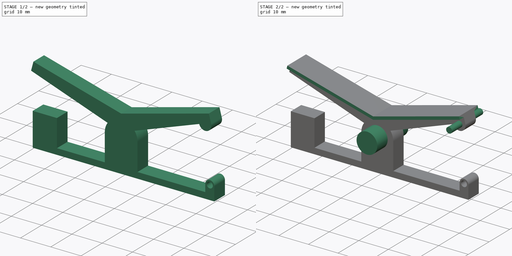
[diagram: build sequence overview — one tinted view per stage of 2, left to right]
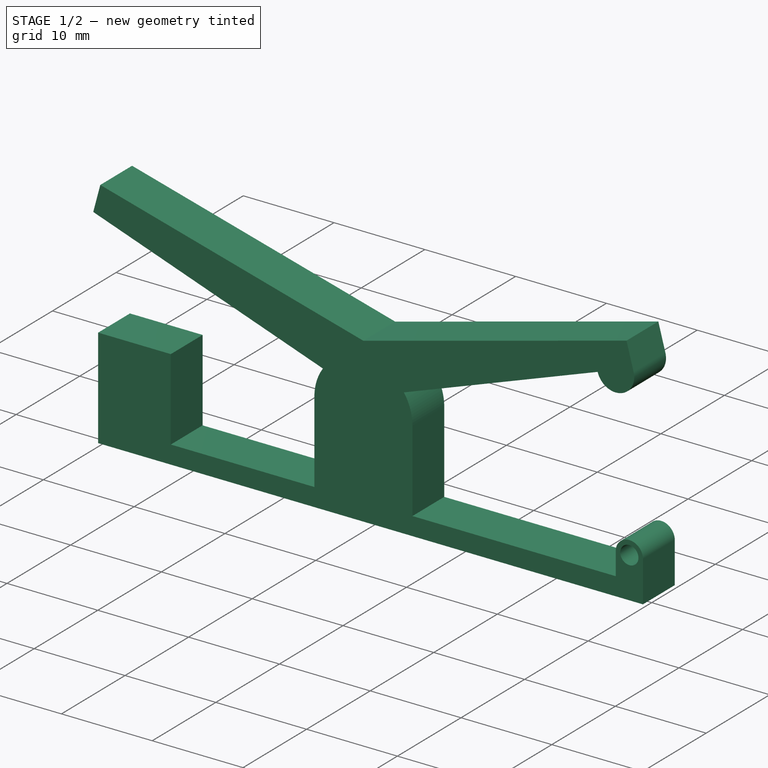
[diagram: stage 1 of 2 — iso view after this stage's code; geometry added in this stage tinted green]
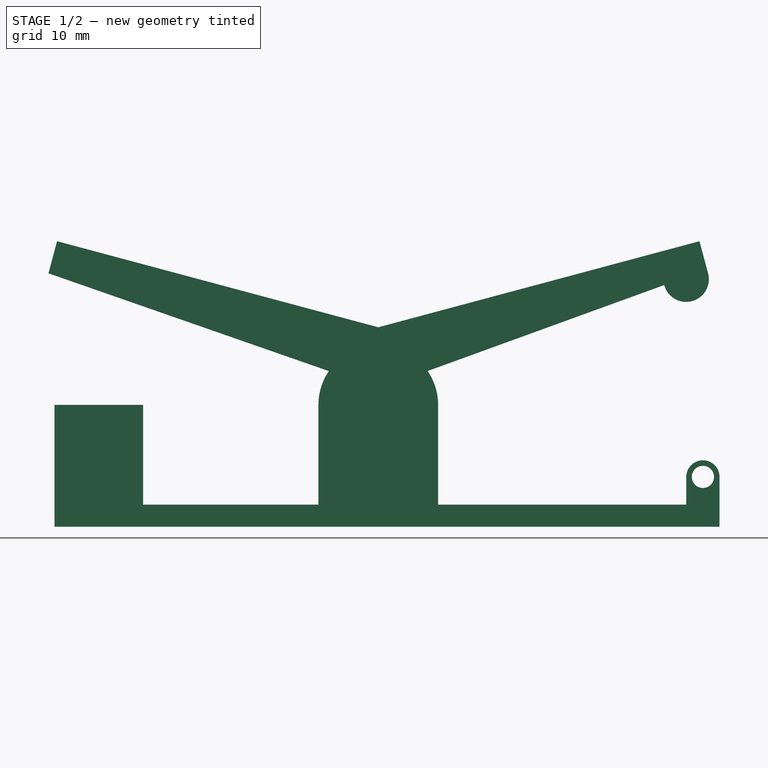
[diagram: stage 1 of 2 — front view after this stage's code; geometry added in this stage tinted green]
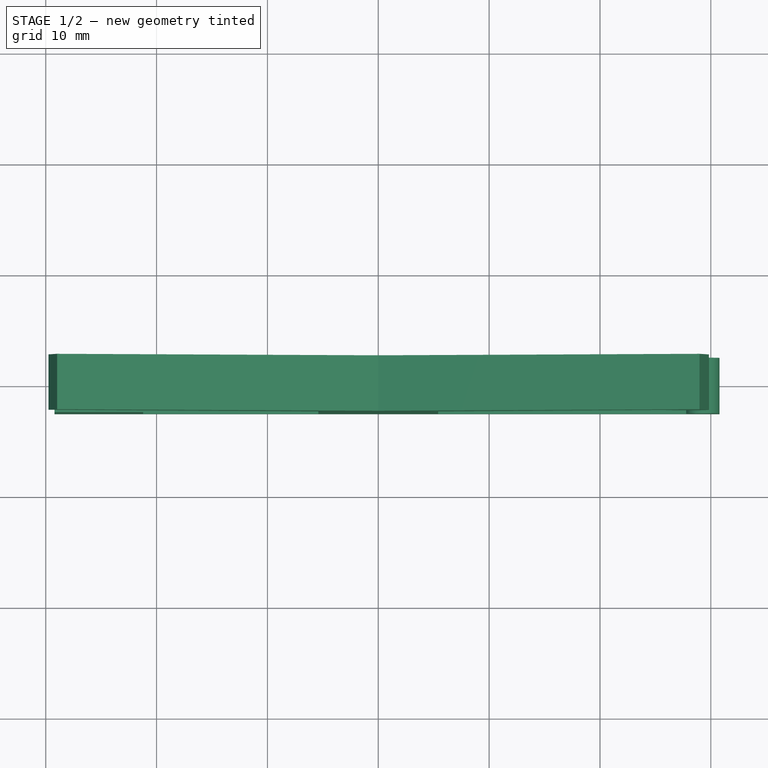
[diagram: stage 1 of 2 — top view after this stage's code; geometry added in this stage tinted green]
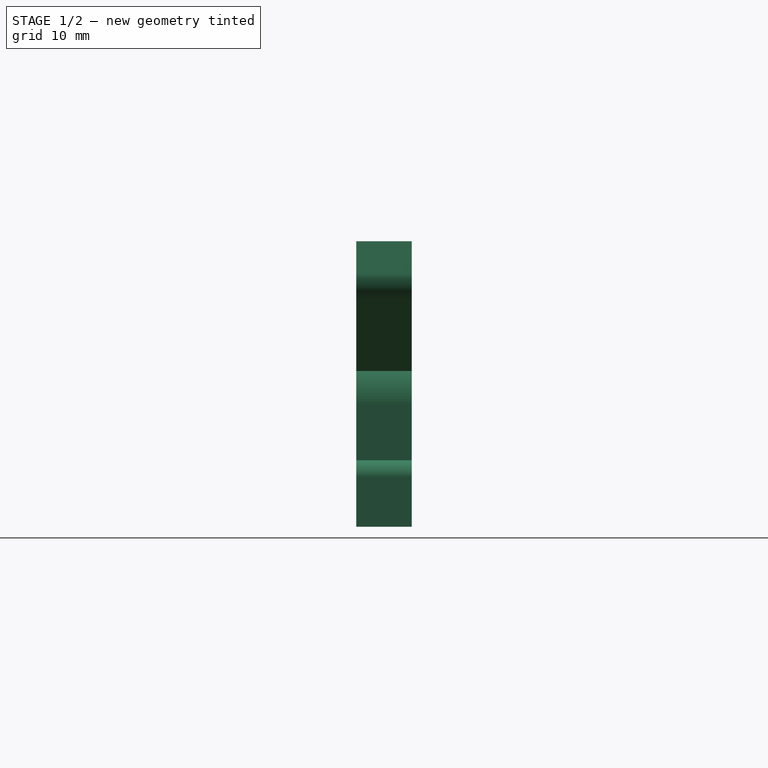
[diagram: stage 1 of 2 — right view after this stage's code; geometry added in this stage tinted green]
FCSTD DOCUMENT  (FreeCAD 1.0R39109 (Git))
Label: towel_hook
License: All rights reserved
LicenseURL: https://en.wikipedia.org/wiki/All_rights_reserved
objects: Sketcher::SketchObject×6, PartDesign::Pad×4, PartDesign::Body×2
note: 26 computed .brp shape members not serialized (recipe doc carries the construction recipe); baked Part::Feature solids carry a one-line shape summary decoded from their .brp

FEATURE [Sketcher::SketchObject] Sketch  label="construction_draft"
  ArcFitTolerance = 1e-06
  AttachmentSupport = -> [XZ_Plane001]
  FullyConstrained = true
  MakeInternals = false
  MapMode = 5
  Placement = pos=(0,0,0) rot=(1,0,0;1.5708rad)
  sketch-geometry (10):
    g0: Circle [constr] CenterX=0 CenterY=0 CenterZ=0 NormalX=0 NormalY=0 NormalZ=1 AngleXU=0 Radius=4
    g1: Circle [constr] CenterX=0 CenterY=0 CenterZ=0 NormalX=0 NormalY=0 NormalZ=1 AngleXU=0 Radius=5
    g2: LineSegment [constr] StartX=-2.20834 StartY=4.48589 StartZ=0 EndX=-29.7542 EndY=11.8668 EndZ=0
    g3: LineSegment [constr] StartX=-28.9778 StartY=14.7646 StartZ=0 EndX=-29.7542 EndY=11.8668 EndZ=0
    g4: LineSegment [constr] StartX=-28.9778 StartY=14.7646 StartZ=0 EndX=0 EndY=7 EndZ=0
    g5: LineSegment [constr] StartX=0 StartY=7 StartZ=0 EndX=28.9778 EndY=14.7646 EndZ=0
    g6: LineSegment [constr] StartX=28.9778 StartY=14.7646 StartZ=0 EndX=29.7542 EndY=11.8668 EndZ=0
    g7: LineSegment [constr] StartX=2.20834 StartY=4.48589 StartZ=0 EndX=29.7542 EndY=11.8668 EndZ=0
    g8: GeomPoint [constr] X=27.7756 Y=11.3366 Z=0
    g9: ArcOfCircle [constr] CenterX=27.7756 CenterY=11.3366 CenterZ=0 NormalX=0 NormalY=0 NormalZ=1 AngleXU=0 Radius=2 StartAngle=3.40339 EndAngle=6.54498
  constraints (29):
    c: Coincident(g0,g-1)
    c: Coincident(g1,g0)
    c: Diameter(g0) = 8
    c: Diameter(g1) = 10
    c: PointOnObject(g2,g1)
    c: Coincident(g3,g2)
    c: Perpendicular(g2,g3)
    c: Coincident(g4,g3)
    c: Coincident(g5,g4)
    c: PointOnObject(g4,g-2)
    c: Distance(g4,g1) = 2
    c: Parallel(g4,g2)
    c: Coincident(g6,g5)
    c: PointOnObject(g7,g1)
    c: Coincident(g7,g6)
    c: Parallel(g5,g7)
    c: Perpendicular(g6,g5)
    c: Equal(g3,g6)
    c: Angle(g5,g-2) = 1.309
    c: Angle(g-2,g4) = 1.309
    c: Distance(g3,g3) = 3
    c: Distance(g5,g5) = 30
    c: Distance(g4,g4) = 30
    c: PointOnObject(g8,g7)
    c: Distance(g0,g8) = 30
    c: PointOnObject(g9,g7)
    c: PointOnObject(g9,g7)
    c: Coincident(g9,g8)
    c: Radius(g9) = 2
FEATURE [Sketcher::SketchObject] Sketch001  label="solid"
  ArcFitTolerance = 1e-06
  AttachmentSupport = -> [XZ_Plane001]
  FullyConstrained = true
  MakeInternals = false
  MapMode = 5
  Placement = pos=(0,0,0) rot=(1,0,0;1.5708rad)
  sketch-geometry (18):
    g0: Circle [constr] CenterX=0 CenterY=0 CenterZ=0 NormalX=0 NormalY=0 NormalZ=1 AngleXU=0 Radius=4
    g1: Circle [constr] CenterX=0 CenterY=0 CenterZ=0 NormalX=0 NormalY=0 NormalZ=1 AngleXU=0 Radius=5
    g2: LineSegment [constr] StartX=-2.20834 StartY=4.48589 StartZ=0 EndX=-29.7542 EndY=11.8668 EndZ=0
    g3: LineSegment [constr] StartX=-28.9778 StartY=14.7646 StartZ=0 EndX=-29.7542 EndY=11.8668 EndZ=0
    g4: LineSegment [constr] StartX=-28.9778 StartY=14.7646 StartZ=0 EndX=0 EndY=7 EndZ=0
    g5: LineSegment [constr] StartX=0 StartY=7 StartZ=0 EndX=28.9778 EndY=14.7646 EndZ=0
    g6: LineSegment [constr] StartX=28.9778 StartY=14.7646 StartZ=0 EndX=29.7542 EndY=11.8668 EndZ=0
    g7: LineSegment [constr] StartX=2.20834 StartY=4.48589 StartZ=0 EndX=29.7542 EndY=11.8668 EndZ=0
    g8: GeomPoint [constr] X=27.7756 Y=11.3366 Z=0
    g9: ArcOfCircle [constr] CenterX=27.7756 CenterY=11.3366 CenterZ=0 NormalX=0 NormalY=0 NormalZ=1 AngleXU=0 Radius=2 StartAngle=3.40339 EndAngle=6.54498
    g10: LineSegment StartX=-29.7542 StartY=11.8668 StartZ=0 EndX=-28.9778 EndY=14.7646 EndZ=0
    g11: LineSegment StartX=-28.9778 StartY=14.7646 StartZ=0 EndX=0 EndY=7 EndZ=0
    g12: LineSegment StartX=0 StartY=7 StartZ=0 EndX=28.9778 EndY=14.7646 EndZ=0
    g13: LineSegment StartX=28.9778 StartY=14.7646 StartZ=0 EndX=29.7542 EndY=11.8668 EndZ=0
    g14: LineSegment StartX=4.06409 StartY=2.91259 StartZ=0 EndX=25.7969 EndY=10.8064 EndZ=0
    g15: ArcOfCircle CenterX=27.7756 CenterY=11.3366 CenterZ=0 NormalX=0 NormalY=0 NormalZ=1 AngleXU=0 Radius=2.04848 StartAngle=3.40339 EndAngle=6.54498
    g16: LineSegment StartX=-4.06611 StartY=2.90977 StartZ=0 EndX=-29.7542 EndY=11.8668 EndZ=0
    g17: ArcOfCircle CenterX=0 CenterY=0 CenterZ=0 NormalX=0 NormalY=0 NormalZ=1 AngleXU=0 Radius=5 StartAngle=2.52046 EndAngle=6.90501
  constraints (48):
    c: Coincident(g0,g-1)
    c: Coincident(g1,g0)
    c: Diameter(g0) = 8
    c: Diameter(g1) = 10
    c: PointOnObject(g2,g1)
    c: Coincident(g3,g2)
    c: Perpendicular(g2,g3)
    c: Coincident(g4,g3)
    c: Coincident(g5,g4)
    c: PointOnObject(g4,g-2)
    c: Distance(g4,g1) = 2
    c: Parallel(g4,g2)
    c: Coincident(g6,g5)
    c: PointOnObject(g7,g1)
    c: Coincident(g7,g6)
    c: Parallel(g5,g7)
    c: Perpendicular(g6,g5)
    c: Equal(g3,g6)
    c: Angle(g5,g-2) = 1.309
    c: Angle(g-2,g4) = 1.309
    c: Distance(g3,g3) = 3
    c: Distance(g5,g5) = 30
    c: Distance(g4,g4) = 30
    c: PointOnObject(g8,g7)
    c: Distance(g0,g8) = 30
    c: PointOnObject(g9,g7)
    c: PointOnObject(g9,g7)
    c: Coincident(g9,g8)
    c: Radius(g9) = 2
    c: Coincident(g10,g2)
    c: Coincident(g10,g3)
    c: Coincident(g11,g10)
    c: Coincident(g11,g4)
    c: Coincident(g12,g11)
    c: Coincident(g12,g5)
    c: Coincident(g13,g12)
    c: Coincident(g13,g6)
    c: PointOnObject(g14,g1)
    c: Coincident(g15,g6)
    c: Coincident(g15,g14)
    c: Coincident(g15,g8)
    c: Distance(g14,g12) = 3
    c: Distance(g14,g12) = 5
    c: PointOnObject(g16,g1)
    c: Coincident(g16,g2)
    c: Coincident(g17,g16)
    c: Coincident(g17,g14)
    c: Coincident(g17,g0)
FEATURE [PartDesign::Pad] Pad
  Direction = (0,-1,2e-16)
  Length = 2.5
  Length2 = 2.5
  Placement = pos=(0,0,0) rot=(1,0,0;1.5708rad)
  Profile = -> Sketch001
  ReferenceAxis = -> Sketch001 [N_Axis]
  Refine = true
  Suppressed = false
  Type = 4
FEATURE [PartDesign::Body] Body001
  AllowCompound = false
  Group = -> [Sketch,Sketch001,Pad,Sketch002,Pad001,Sketch004,Pad002]
  Origin = -> Origin001
  Tip = -> Pad002
FEATURE [Sketcher::SketchObject] Sketch005
  ArcFitTolerance = 1e-06
  AttachmentSupport = -> [XZ_Plane]
  FullyConstrained = false
  MakeInternals = false
  MapMode = 5
  Placement = pos=(0,0,0) rot=(1,0,0;1.5708rad)
  sketch-geometry (18):
    g0: Circle [constr] CenterX=0 CenterY=0 CenterZ=0 NormalX=0 NormalY=0 NormalZ=1 AngleXU=0 Radius=3.4
    g1: LineSegment [constr] StartX=-29.3315 StartY=0 StartZ=0 EndX=-29.3315 EndY=-9 EndZ=0
    g2: LineSegment [constr] StartX=-29.3315 StartY=-9 StartZ=0 EndX=-21.3315 EndY=-9 EndZ=0
    g3: LineSegment [constr] StartX=-21.3315 StartY=-9 StartZ=0 EndX=-21.3315 EndY=0 EndZ=0
    g4: LineSegment [constr] StartX=-21.3315 StartY=0 StartZ=0 EndX=-29.3315 EndY=0 EndZ=0
    g5: ArcOfCircle [constr] CenterX=0 CenterY=0 CenterZ=0 NormalX=0 NormalY=0 NormalZ=1 AngleXU=0 Radius=5.4 StartAngle=0 EndAngle=3.14159
    g6: LineSegment [constr] StartX=5.4 StartY=0 StartZ=0 EndX=5.4 EndY=-9 EndZ=0
    g7: LineSegment [constr] StartX=-5.4 StartY=7e-16 StartZ=0 EndX=-5.4 EndY=-9 EndZ=0
    g8: LineSegment [constr] StartX=0 StartY=0 StartZ=0 EndX=29.1685 EndY=-7.01399 EndZ=0
    g9: LineSegment [constr] StartX=-21.3315 StartY=-9 StartZ=0 EndX=-5.4 EndY=-9 EndZ=0
    g10: LineSegment [constr] StartX=-29.3315 StartY=-9 StartZ=0 EndX=-29.3315 EndY=-11 EndZ=0
    g11: LineSegment [constr] StartX=-29.3315 StartY=-11 StartZ=0 EndX=30.6685 EndY=-11 EndZ=0
    g12: LineSegment [constr] StartX=5.4 StartY=-9 StartZ=0 EndX=30.6685 EndY=-9 EndZ=0
    g13: LineSegment [constr] StartX=30.6685 StartY=-9 StartZ=0 EndX=30.6685 EndY=-11 EndZ=0
    g14: Circle [constr] CenterX=29.1685 CenterY=-7.01399 CenterZ=0 NormalX=0 NormalY=0 NormalZ=1 AngleXU=0 Radius=1
    g15: Circle [constr] CenterX=29.1685 CenterY=-7.01399 CenterZ=0 NormalX=0 NormalY=0 NormalZ=1 AngleXU=0 Radius=1.5
    g16: LineSegment [constr] StartX=27.6685 StartY=-7.01399 StartZ=0 EndX=27.6685 EndY=-9 EndZ=0
    g17: LineSegment [constr] StartX=30.6685 StartY=-7.01399 StartZ=0 EndX=30.6685 EndY=-9 EndZ=0
  constraints (48):
    c: Coincident(g0,g-1)
    c: Diameter(g0) = 6.8
    c: Coincident(g1,g2)
    c: Coincident(g2,g3)
    c: Coincident(g3,g4)
    c: Coincident(g4,g1)
    c: Vertical(g1)
    c: Vertical(g3)
    c: Horizontal(g2)
    c: Horizontal(g4)
    c: PointOnObject(g5,g-1)
    c: Coincident(g5,g0)
    c: Coincident(g6,g5)
    c: Vertical(g6)
    c: Coincident(g7,g5)
    c: Vertical(g7)
    c: Coincident(g8,g0)
    c: Distance(g8,g8) = 30
    c: Coincident(g9,g2)
    c: Horizontal(g9)
    c: Coincident(g7,g9)
    c: Distance(g5,g0) = 2
    c: DistanceX(g4,g4) = 8
    c: Coincident(g10,g1)
    c: Vertical(g10)
    c: Coincident(g11,g10)
    c: Horizontal(g11)
    c: DistanceY(g10,g10) = 2
    c: Coincident(g12,g6)
    c: Horizontal(g12)
    c: Coincident(g13,g11)
    c: Vertical(g13)
    c: Coincident(g13,g12)
    c: Equal(g13,g10)
    c: Diameter(g14) = 2
    c: Coincident(g15,g8)
    c: Diameter(g15) = 3
    c: Tangent(g16,g15) = -1.5708
    c: PointOnObject(g16,g12)
    c: Vertical(g16)
    c: PointOnObject(g17,g12)
    c: Vertical(g17)
    c: DistanceX(g11,g11) = 60
    c: PointOnObject(g12,g17)
    c: Coincident(g14,g8)
    c: PointOnObject(g3,g-1)
    c: DistanceY(g1,g1) = 9
    c: Tangent(g17,g15) = 1.5708
FEATURE [Sketcher::SketchObject] Sketch006
  ArcFitTolerance = 1e-06
  AttachmentSupport = -> [XZ_Plane]
  FullyConstrained = true
  MakeInternals = false
  MapMode = 5
  Placement = pos=(0,0,0) rot=(1,0,0;1.5708rad)
  sketch-geometry (32):
    g0: Circle [constr] CenterX=0 CenterY=0 CenterZ=0 NormalX=0 NormalY=0 NormalZ=1 AngleXU=0 Radius=3.4
    g1: LineSegment [constr] StartX=-29.2126 StartY=0 StartZ=0 EndX=-29.2126 EndY=-9 EndZ=0
    g2: LineSegment [constr] StartX=-29.2126 StartY=-9 StartZ=0 EndX=-21.2126 EndY=-9 EndZ=0
    g3: LineSegment [constr] StartX=-21.2126 StartY=-9 StartZ=0 EndX=-21.2126 EndY=0 EndZ=0
    g4: LineSegment [constr] StartX=-21.2126 StartY=0 StartZ=0 EndX=-29.2126 EndY=0 EndZ=0
    g5: ArcOfCircle [constr] CenterX=0 CenterY=0 CenterZ=0 NormalX=0 NormalY=0 NormalZ=1 AngleXU=0 Radius=5.4 StartAngle=0 EndAngle=3.14159
    g6: LineSegment [constr] StartX=5.4 StartY=0 StartZ=0 EndX=5.4 EndY=-9 EndZ=0
    g7: LineSegment [constr] StartX=-5.4 StartY=7e-16 StartZ=0 EndX=-5.4 EndY=-9 EndZ=0
    g8: LineSegment [constr] StartX=0 StartY=0 StartZ=0 EndX=29.2874 EndY=-6.5 EndZ=0
    g9: LineSegment [constr] StartX=-21.2126 StartY=-9 StartZ=0 EndX=-5.4 EndY=-9 EndZ=0
    g10: LineSegment [constr] StartX=-29.2126 StartY=-9 StartZ=0 EndX=-29.2126 EndY=-11 EndZ=0
    g11: LineSegment [constr] StartX=-29.2126 StartY=-11 StartZ=0 EndX=30.7874 EndY=-11 EndZ=0
    g12: LineSegment [constr] StartX=5.4 StartY=-9 StartZ=0 EndX=30.7874 EndY=-9 EndZ=0
    g13: LineSegment [constr] StartX=30.7874 StartY=-9 StartZ=0 EndX=30.7874 EndY=-11 EndZ=0
    g14: Circle [constr] CenterX=29.2874 CenterY=-6.5 CenterZ=0 NormalX=0 NormalY=0 NormalZ=1 AngleXU=0 Radius=1
    g15: Circle [constr] CenterX=29.2874 CenterY=-6.5 CenterZ=0 NormalX=0 NormalY=0 NormalZ=1 AngleXU=0 Radius=1.5
    g16: LineSegment [constr] StartX=27.7874 StartY=-6.5 StartZ=0 EndX=27.7874 EndY=-9 EndZ=0
    g17: LineSegment [constr] StartX=30.7874 StartY=-6.5 StartZ=0 EndX=30.7874 EndY=-9 EndZ=0
    g18: LineSegment StartX=-29.2126 StartY=0 StartZ=0 EndX=-29.2126 EndY=-11 EndZ=0
    g19: LineSegment StartX=-29.2126 StartY=-11 StartZ=0 EndX=30.7874 EndY=-11 EndZ=0
    g20: LineSegment StartX=30.7874 StartY=-11 StartZ=0 EndX=30.7874 EndY=-6.5 EndZ=0
    g21: LineSegment StartX=27.7874 StartY=-6.5 StartZ=0 EndX=27.7874 EndY=-9 EndZ=0
    g22: LineSegment StartX=27.7874 StartY=-9 StartZ=0 EndX=5.4 EndY=-9 EndZ=0
    g23: LineSegment StartX=5.4 StartY=0 StartZ=0 EndX=5.4 EndY=-9 EndZ=0
    g24: LineSegment StartX=-5.4 StartY=7e-16 StartZ=0 EndX=-5.4 EndY=-9 EndZ=0
    g25: LineSegment StartX=-5.4 StartY=-9 StartZ=0 EndX=-21.2126 EndY=-9 EndZ=0
    g26: LineSegment StartX=-21.2126 StartY=0 StartZ=0 EndX=-21.2126 EndY=-9 EndZ=0
    g27: LineSegment StartX=-21.2126 StartY=0 StartZ=0 EndX=-29.2126 EndY=0 EndZ=0
    g28: Circle CenterX=0 CenterY=0 CenterZ=0 NormalX=0 NormalY=0 NormalZ=1 AngleXU=0 Radius=3.4
    g29: ArcOfCircle CenterX=-3e-16 CenterY=0 CenterZ=0 NormalX=0 NormalY=0 NormalZ=1 AngleXU=0 Radius=5.4 StartAngle=0 EndAngle=3.14159
    g30: ArcOfCircle CenterX=29.2874 CenterY=-6.5 CenterZ=0 NormalX=0 NormalY=0 NormalZ=1 AngleXU=0 Radius=1.5 StartAngle=3.14967e-09 EndAngle=3.14159
    g31: Circle CenterX=29.2874 CenterY=-6.5 CenterZ=0 NormalX=0 NormalY=0 NormalZ=1 AngleXU=0 Radius=1.00001
  constraints (79):
    c: Coincident(g0,g-1)
    c: Diameter(g0) = 6.8
    c: Coincident(g1,g2)
    c: Coincident(g2,g3)
    c: Coincident(g3,g4)
    c: Coincident(g4,g1)
    c: Vertical(g1)
    c: Vertical(g3)
    c: Horizontal(g2)
    c: Horizontal(g4)
    c: PointOnObject(g5,g-1)
    c: Coincident(g5,g0)
    c: Coincident(g6,g5)
    c: Vertical(g6)
    c: Coincident(g7,g5)
    c: Vertical(g7)
    c: Coincident(g8,g0)
    c: Distance(g8,g8) = 30
    c: Coincident(g9,g2)
    c: Horizontal(g9)
    c: Coincident(g7,g9)
    c: Distance(g5,g0) = 2
    c: DistanceX(g4,g4) = 8
    c: Coincident(g10,g1)
    c: Vertical(g10)
    c: Coincident(g11,g10)
    c: Horizontal(g11)
    c: DistanceY(g10,g10) = 2
    c: Coincident(g12,g6)
    c: Horizontal(g12)
    c: Coincident(g13,g11)
    c: Vertical(g13)
    c: Coincident(g13,g12)
    c: Equal(g13,g10)
    c: Diameter(g14) = 2
    c: Coincident(g15,g8)
    c: Diameter(g15) = 3
    c: Tangent(g16,g15) = -1.5708
    c: PointOnObject(g16,g12)
    c: Vertical(g16)
    c: PointOnObject(g17,g12)
    c: Vertical(g17)
    c: DistanceX(g11,g11) = 60
    c: PointOnObject(g12,g17)
    c: Coincident(g14,g8)
    c: PointOnObject(g3,g-1)
    c: DistanceY(g1,g1) = 9
    c: Tangent(g17,g15) = 1.5708
    c: Coincident(g18,g1)
    c: Coincident(g18,g10)
    c: Coincident(g19,g10)
    c: Coincident(g19,g11)
    c: Coincident(g20,g11)
    c: Coincident(g20,g17)
    c: Coincident(g21,g16)
    c: Coincident(g21,g16)
    c: Coincident(g22,g16)
    c: Coincident(g22,g6)
    c: Coincident(g23,g5)
    c: Coincident(g23,g6)
    c: Coincident(g24,g5)
    c: Coincident(g24,g7)
    c: Coincident(g25,g7)
    c: Coincident(g25,g2)
    c: Coincident(g26,g3)
    c: Coincident(g26,g2)
    c: Coincident(g27,g3)
    c: Coincident(g27,g1)
    c: Coincident(g28,g0)
    c: Equal(g28,g0)
    c: Tangent(g29,g5) = -1.5708
    c: Coincident(g29,g5)
    c: PointOnObject(g5,g-1)
    c: Distance(g15,g12) = 1
    c: Coincident(g30,g16)
    c: Coincident(g30,g17)
    c: Tangent(g30,g15)
    c: Coincident(g31,g30)
    c: Tangent(g31,g14)
FEATURE [PartDesign::Pad] Pad003
  Direction = (0,-1,2e-16)
  Length = 2.5
  Length2 = 2.5
  Placement = pos=(0,0,0) rot=(1,0,0;1.5708rad)
  Profile = -> Sketch006
  ReferenceAxis = -> Sketch006 [N_Axis]
  Refine = true
  Suppressed = false
  Type = 4
FEATURE [PartDesign::Body] Body
  AllowCompound = false
  Group = -> [Sketch005,Sketch006,Pad003]
  Origin = -> Origin
  Tip = -> Pad003
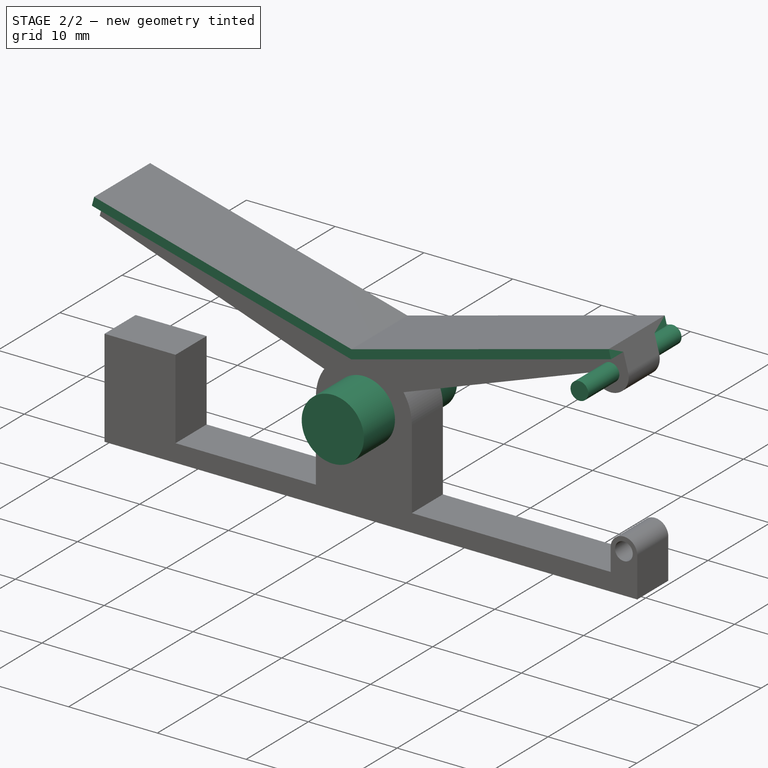
[diagram: stage 2 of 2 — iso view after this stage's code; geometry added in this stage tinted green]
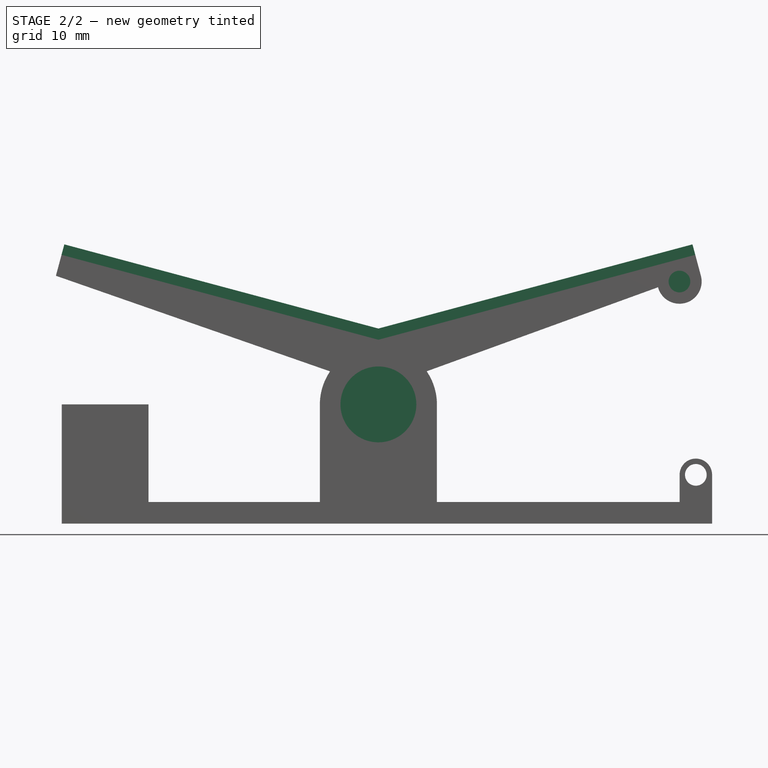
[diagram: stage 2 of 2 — front view after this stage's code; geometry added in this stage tinted green]
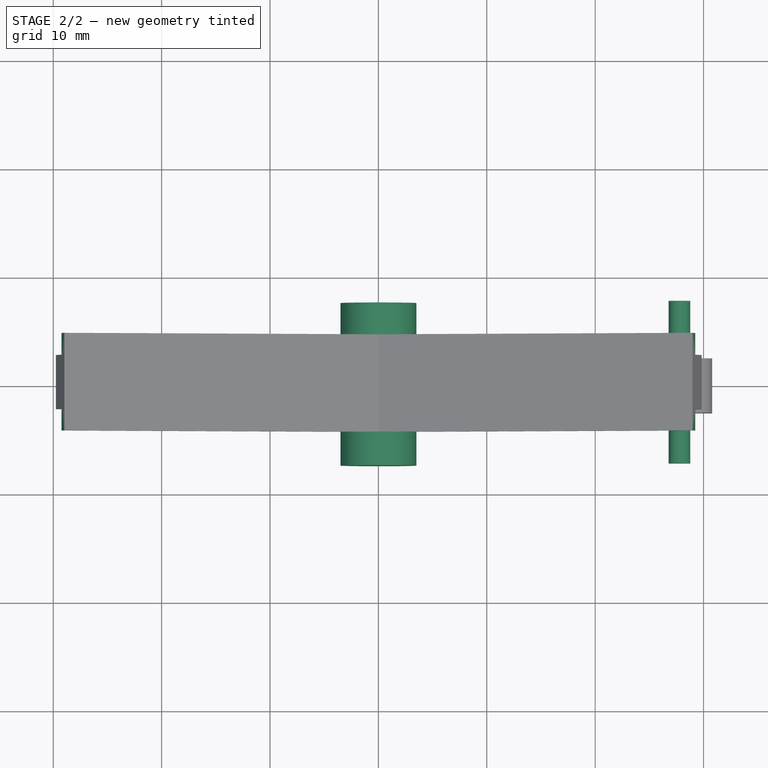
[diagram: stage 2 of 2 — top view after this stage's code; geometry added in this stage tinted green]
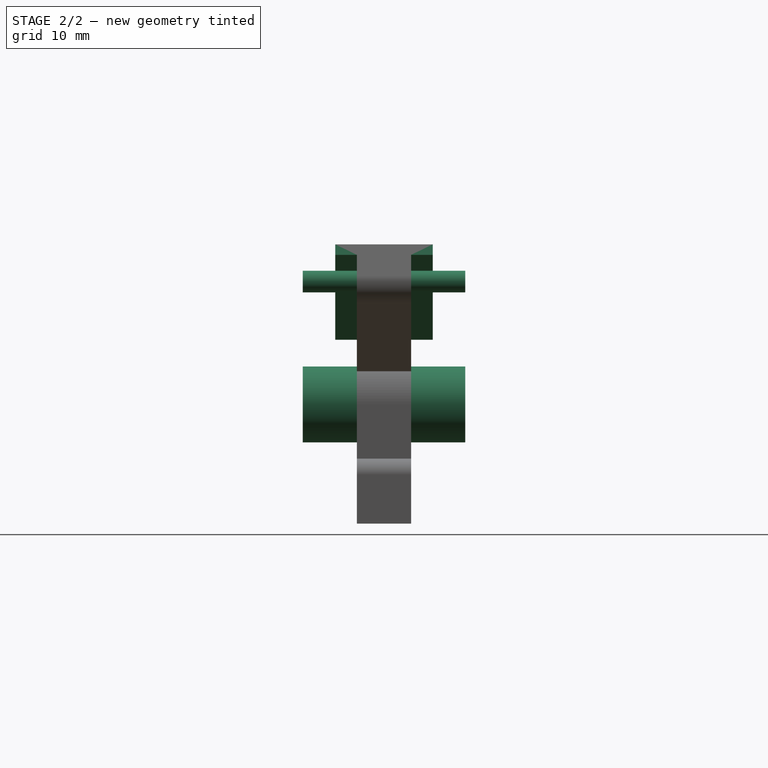
[diagram: stage 2 of 2 — right view after this stage's code; geometry added in this stage tinted green]
FEATURE [Sketcher::SketchObject] Sketch002
  ArcFitTolerance = 1e-06
  AttachmentSupport = -> [Pad]
  ExternalGeometry = -> [Pad]
  FullyConstrained = true
  MakeInternals = false
  MapMode = 5
  Placement = pos=(0,-2.5,6e-16) rot=(1,0,0;1.5708rad)
  sketch-geometry (2):
    g0: Circle CenterX=0 CenterY=0 CenterZ=0 NormalX=0 NormalY=0 NormalZ=1 AngleXU=0 Radius=3.5
    g1: Circle CenterX=27.7756 CenterY=11.3366 CenterZ=0 NormalX=0 NormalY=0 NormalZ=1 AngleXU=0 Radius=1
  constraints (4):
    c: Coincident(g0,g-1)
    c: Diameter(g0) = 7
    c: Coincident(g1,g-3)
    c: Diameter(g1) = 2
FEATURE [PartDesign::Pad] Pad001
  BaseFeature = -> Pad
  Direction = (0,-1,2e-16)
  Length = 5
  Length2 = 10
  Placement = pos=(0,0,0) rot=(1,0,0;1.5708rad)
  Profile = -> Sketch002
  ReferenceAxis = -> Sketch002 [N_Axis]
  Refine = true
  Suppressed = false
  Type = 4
FEATURE [Sketcher::SketchObject] Sketch004
  ArcFitTolerance = 1e-06
  AttachmentSupport = -> [Pad001]
  ExternalGeometry = -> [Pad001]
  FullyConstrained = true
  MakeInternals = false
  MapMode = 5
  Placement = pos=(0,-2.5,6e-16) rot=(1,0,0;1.5708rad)
  sketch-geometry (6):
    g0: LineSegment StartX=0 StartY=7 StartZ=0 EndX=28.9778 EndY=14.7646 EndZ=0
    g1: LineSegment StartX=28.9778 StartY=14.7646 StartZ=0 EndX=29.2366 EndY=13.7986 EndZ=0
    g2: LineSegment StartX=29.2366 StartY=13.7986 StartZ=0 EndX=0 EndY=5.96472 EndZ=0
    g3: LineSegment StartX=0 StartY=7 StartZ=0 EndX=-28.9778 EndY=14.7646 EndZ=0
    g4: LineSegment StartX=-28.9778 StartY=14.7646 StartZ=0 EndX=-29.2366 EndY=13.7986 EndZ=0
    g5: LineSegment StartX=-29.2366 StartY=13.7986 StartZ=0 EndX=0 EndY=5.96472 EndZ=0
  constraints (15):
    c: Coincident(g0,g-5)
    c: Coincident(g0,g-6)
    c: Coincident(g1,g0)
    c: PointOnObject(g1,g-6)
    c: Coincident(g2,g1)
    c: Coincident(g3,g0)
    c: Coincident(g3,g-4)
    c: Coincident(g4,g3)
    c: PointOnObject(g4,g-4)
    c: Coincident(g5,g2)
    c: Distance(g4,g4) = 1
    c: Coincident(g5,g4)
    c: Parallel(g5,g3)
    c: Equal(g1,g4)
    c: PointOnObject(g2,g-2)
FEATURE [PartDesign::Pad] Pad002
  BaseFeature = -> Pad001
  Direction = (0,-1,2e-16)
  Length = 2
  Length2 = 7
  Placement = pos=(0,0,0) rot=(1,0,0;1.5708rad)
  Profile = -> Sketch004
  ReferenceAxis = -> Sketch004 [N_Axis]
  Refine = true
  Suppressed = false
  Type = 4
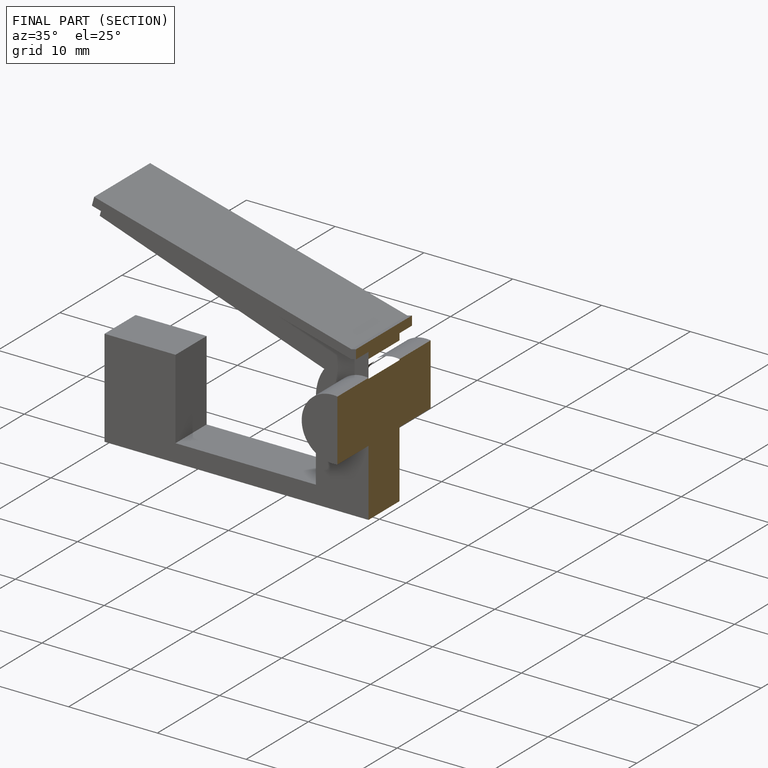
[diagram: finished part — half-section view (interior)]
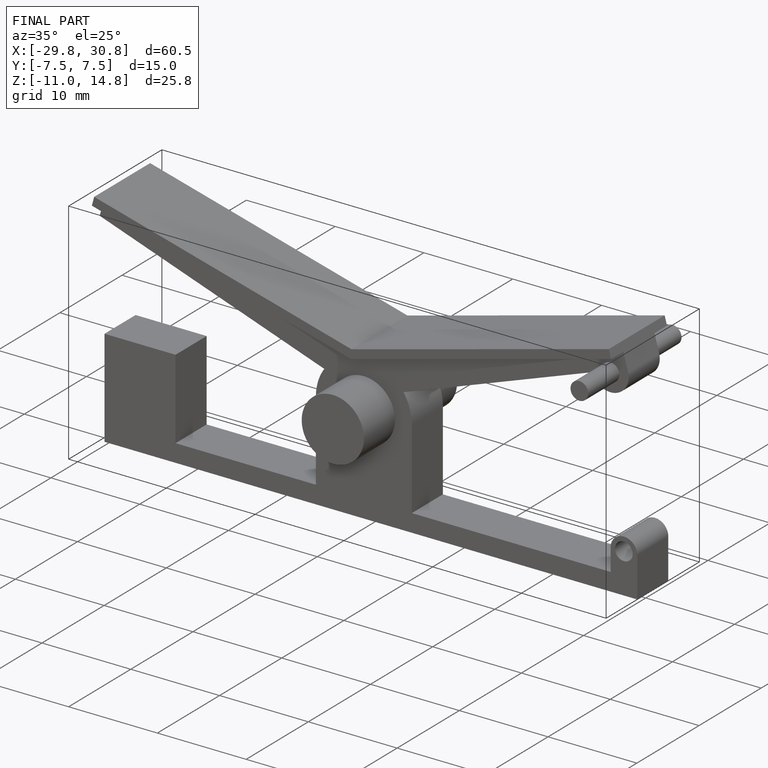
[diagram: finished part — iso view with bounding-box wireframe]
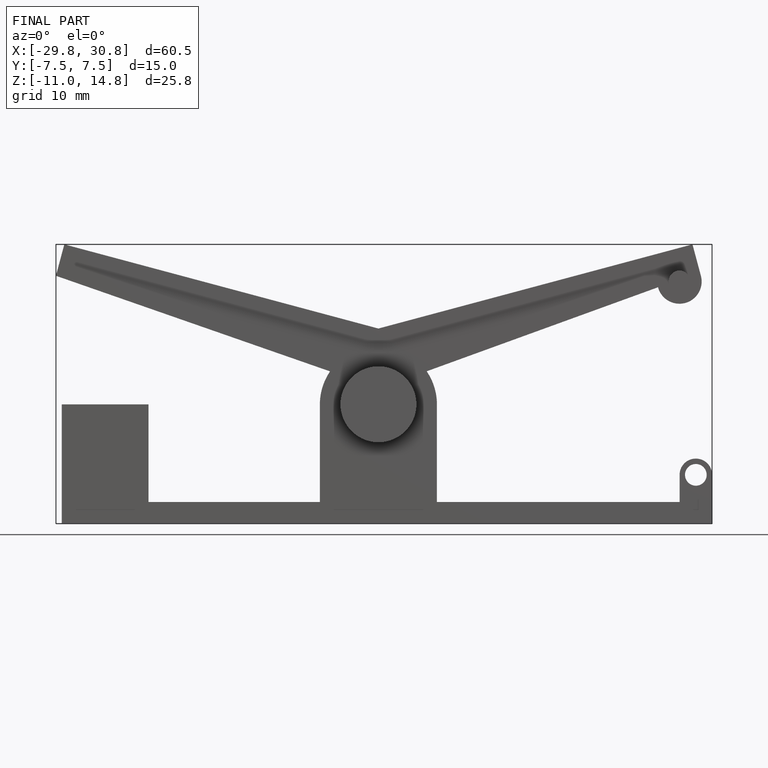
[diagram: finished part — front view with bounding-box wireframe]
